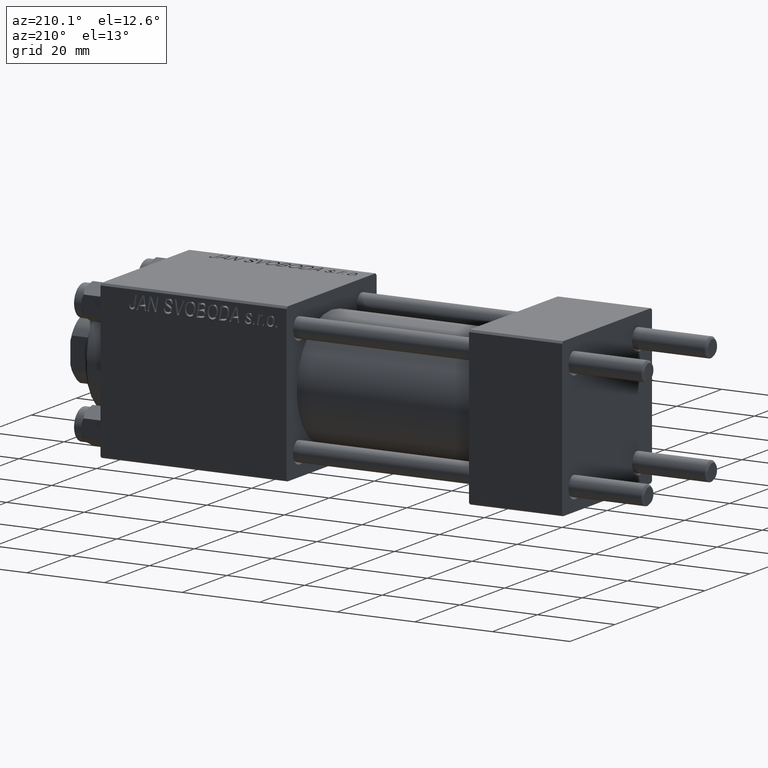
[diagram: clean part render]
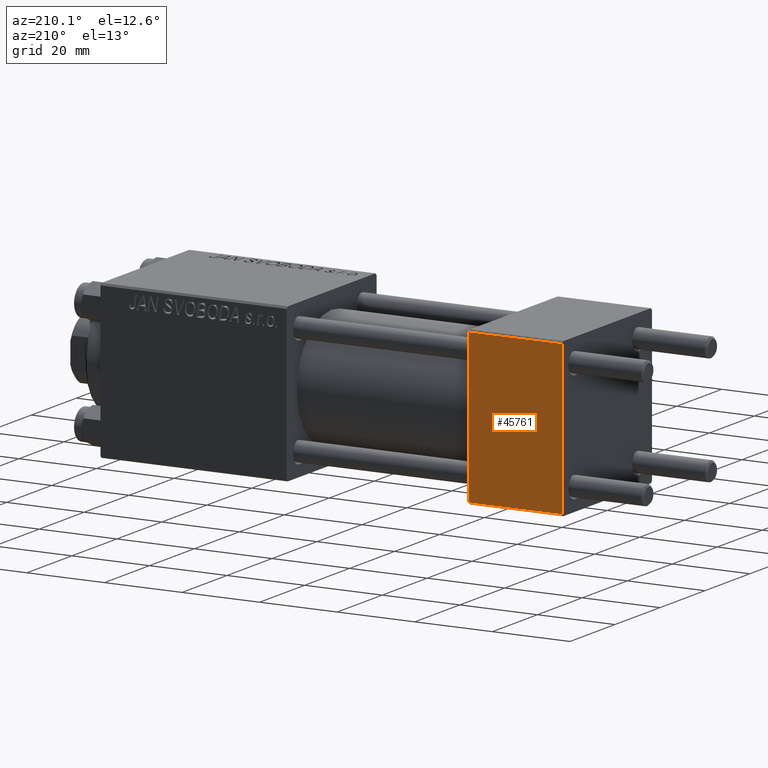
[diagram: same view with one face highlighted and labeled with its STEP entity id]
A machine part, auxiliary view. The second image highlights one B-rep face of the part: STEP entity #45761.
In plain terms, the highlighted planar face has unit normal (0, 1, 0).
Its self-contained STEP definition (entity closure, byte-faithful):
#117 = PLANE ( 'NONE',  #42276 ) ;
#1456 = CARTESIAN_POINT ( 'NONE',  ( 0.000000000000000000, 20.00000000000000000, 20.00000000000000000 ) ) ;
#9796 = EDGE_CURVE ( 'NONE', #18237, #33262, #39603, .T. ) ;
#11940 = EDGE_CURVE ( 'NONE', #33262, #19910, #15519, .T. ) ;
#12529 = DIRECTION ( 'NONE',  ( 0.000000000000000000, 0.000000000000000000, -1.000000000000000000 ) ) ;
#14238 = EDGE_CURVE ( 'NONE', #19910, #40835, #32910, .T. ) ;
#15006 = FACE_OUTER_BOUND ( 'NONE', #32704, .T. ) ;
#15519 = LINE ( 'NONE', #30877, #22985 ) ;
#17262 = EDGE_CURVE ( 'NONE', #18237, #40835, #20845, .T. ) ;
#18237 = VERTEX_POINT ( 'NONE', #34627 ) ;
#18332 = ORIENTED_EDGE ( 'NONE', *, *, #9796, .T. ) ;
#19910 = VERTEX_POINT ( 'NONE', #23122 ) ;
#20845 = LINE ( 'NONE', #1456, #21397 ) ;
#21300 = VECTOR ( 'NONE', #47884, 1000.000000000000000 ) ;
#21397 = VECTOR ( 'NONE', #12529, 1000.000000000000000 ) ;
#22985 = VECTOR ( 'NONE', #46195, 1000.000000000000000 ) ;
#23122 = CARTESIAN_POINT ( 'NONE',  ( 24.00000000000000000, 20.00000000000000000, -19.50000000000002132 ) ) ;
#26825 = ORIENTED_EDGE ( 'NONE', *, *, #11940, .T. ) ;
#28006 = CARTESIAN_POINT ( 'NONE',  ( 24.00000000000000000, 20.00000000000000000, 19.49999999999999289 ) ) ;
#29195 = CARTESIAN_POINT ( 'NONE',  ( 0.000000000000000000, 20.00000000000000000, -19.50000000000002132 ) ) ;
#30877 = CARTESIAN_POINT ( 'NONE',  ( 24.00000000000000000, 20.00000000000000000, 20.00000000000000000 ) ) ;
#32560 = CARTESIAN_POINT ( 'NONE',  ( 24.00000000000000000, 20.00000000000000000, 19.49999999999999289 ) ) ;
#32704 = EDGE_LOOP ( 'NONE', ( #26825, #33548, #42035, #18332 ) ) ;
#32910 = LINE ( 'NONE', #36427, #34244 ) ;
#33262 = VERTEX_POINT ( 'NONE', #28006 ) ;
#33548 = ORIENTED_EDGE ( 'NONE', *, *, #14238, .T. ) ;
#34244 = VECTOR ( 'NONE', #40708, 1000.000000000000000 ) ;
#34627 = CARTESIAN_POINT ( 'NONE',  ( 0.000000000000000000, 20.00000000000000000, 19.49999999999999289 ) ) ;
#36427 = CARTESIAN_POINT ( 'NONE',  ( 24.00000000000000000, 20.00000000000000000, -19.50000000000002132 ) ) ;
#39603 = LINE ( 'NONE', #32560, #21300 ) ;
#40708 = DIRECTION ( 'NONE',  ( -1.000000000000000000, 0.000000000000000000, 0.000000000000000000 ) ) ;
#40835 = VERTEX_POINT ( 'NONE', #29195 ) ;
#41668 = DIRECTION ( 'NONE',  ( -0.000000000000000000, 1.000000000000000000, 0.000000000000000000 ) ) ;
#42035 = ORIENTED_EDGE ( 'NONE', *, *, #17262, .F. ) ;
#42142 = DIRECTION ( 'NONE',  ( 0.000000000000000000, -0.000000000000000000, 1.000000000000000000 ) ) ;
#42276 = AXIS2_PLACEMENT_3D ( 'NONE', #45425, #41668, #42142 ) ;
#45425 = CARTESIAN_POINT ( 'NONE',  ( 24.00000000000000000, 20.00000000000000000, 20.00000000000000000 ) ) ;
#45761 = ADVANCED_FACE ( 'NONE', ( #15006 ), #117, .T. ) ;
#46195 = DIRECTION ( 'NONE',  ( 0.000000000000000000, 0.000000000000000000, -1.000000000000000000 ) ) ;
#47884 = DIRECTION ( 'NONE',  ( 1.000000000000000000, 0.000000000000000000, 0.000000000000000000 ) ) ;